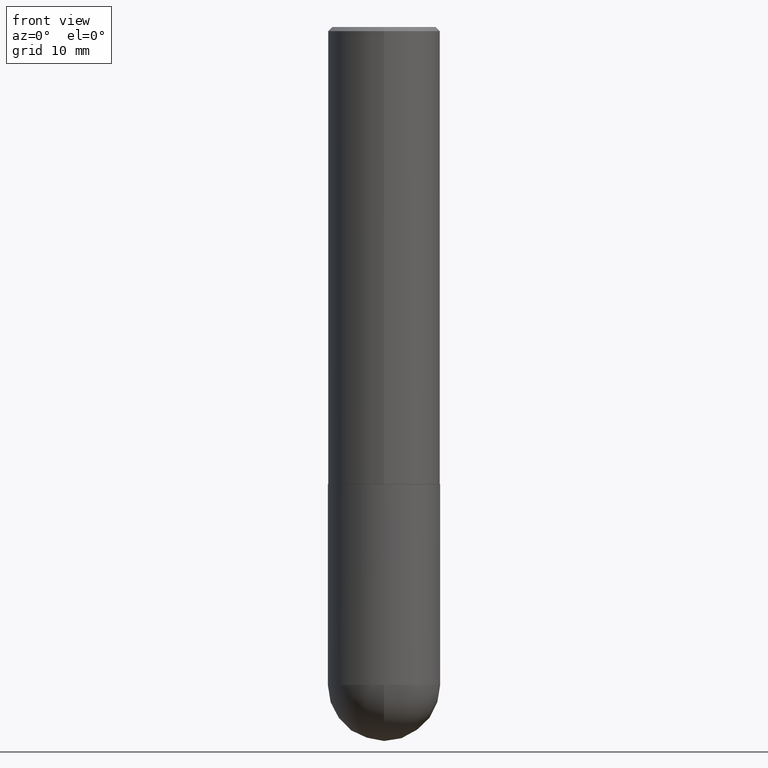
[diagram: clean part render]
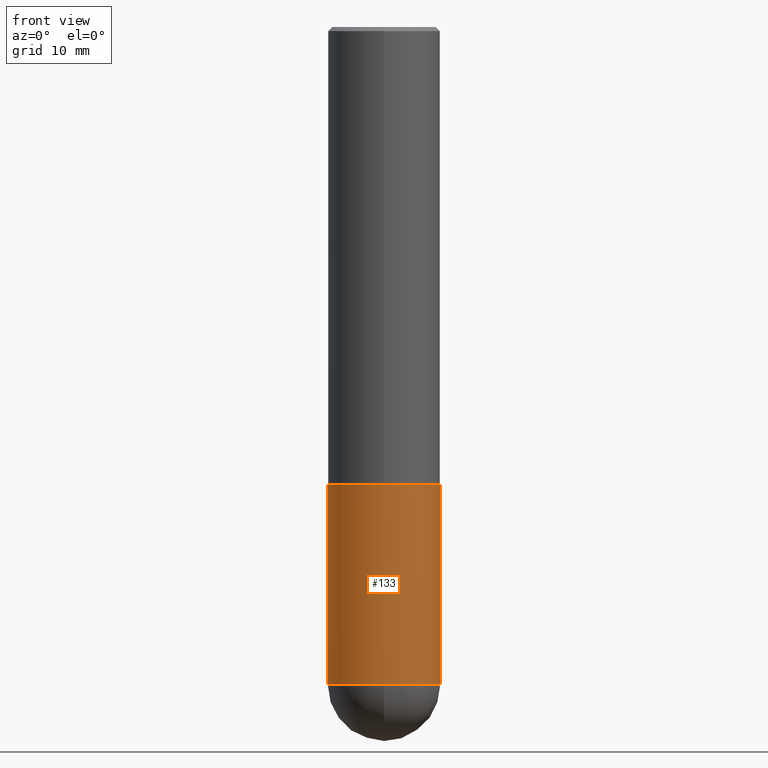
[diagram: same view with one face highlighted and labeled with its STEP entity id]
A machine part, front view. The second image highlights one B-rep face of the part: STEP entity #133.
In plain terms, the highlighted cylindrical surface (partial cylindrical patch) has radius 7.0002 mm, axis along (-0, 0, 1).
Its self-contained STEP definition (entity closure, byte-faithful):
#12 = EDGE_CURVE ( 'NONE', #374, #252, #184, .T. ) ;
#15 = EDGE_LOOP ( 'NONE', ( #256, #92, #86, #65, #49 ) ) ;
#16 = DIRECTION ( 'NONE',  ( -2.445468806185136877E-29, 3.491481338843145188E-15, 1.000000000000000000 ) ) ;
#49 = ORIENTED_EDGE ( 'NONE', *, *, #351, .F. ) ;
#51 = CARTESIAN_POINT ( 'NONE',  ( 0.2756000000000000671, -1.147789575331294974E-14, -3.228299999999999503 ) ) ;
#65 = ORIENTED_EDGE ( 'NONE', *, *, #395, .T. ) ;
#71 = AXIS2_PLACEMENT_3D ( 'NONE', #178, #275, #335 ) ;
#74 = CARTESIAN_POINT ( 'NONE',  ( -0.2756000000000000671, 1.958255779754836589E-15, -1.355658510874252287E-29 ) ) ;
#81 = CARTESIAN_POINT ( 'NONE',  ( -0.2756000000000000671, -7.595135459587778194E-15, -3.228299999999999503 ) ) ;
#83 = VERTEX_POINT ( 'NONE', #233 ) ;
#86 = ORIENTED_EDGE ( 'NONE', *, *, #299, .T. ) ;
#90 = VECTOR ( 'NONE', #127, 39.37007874015748143 ) ;
#92 = ORIENTED_EDGE ( 'NONE', *, *, #12, .T. ) ;
#94 = FACE_OUTER_BOUND ( 'NONE', #15, .T. ) ;
#127 = DIRECTION ( 'NONE',  ( -2.445468806185136877E-29, 3.491481338843145188E-15, 1.000000000000000000 ) ) ;
#129 = DIRECTION ( 'NONE',  ( 1.000000000000000000, -6.982962677686267499E-15, 4.876176775795935793E-29 ) ) ;
#133 = ADVANCED_FACE ( 'NONE', ( #94 ), #135, .T. ) ;
#135 = CYLINDRICAL_SURFACE ( 'NONE', #276, 0.2756000000000000671 ) ;
#144 = AXIS2_PLACEMENT_3D ( 'NONE', #289, #192, #412 ) ;
#151 = AXIS2_PLACEMENT_3D ( 'NONE', #316, #239, #231 ) ;
#158 = CIRCLE ( 'NONE', #151, 0.2756000000000000671 ) ;
#178 = CARTESIAN_POINT ( 'NONE',  ( 5.487876547960063631E-29, -7.835233272497900762E-15, -2.244099999999999540 ) ) ;
#184 = CIRCLE ( 'NONE', #144, 0.2756000000000000671 ) ;
#192 = DIRECTION ( 'NONE',  ( -2.445468806185136597E-29, 3.491481338843145583E-15, 1.000000000000000000 ) ) ;
#231 = DIRECTION ( 'NONE',  ( 1.000000000000000000, -6.982962677686264344E-15, 0.000000000000000000 ) ) ;
#233 = CARTESIAN_POINT ( 'NONE',  ( 0.2756000000000000116, -9.759737786468235716E-15, -2.244099999999999540 ) ) ;
#238 = CIRCLE ( 'NONE', #71, 0.2756000000000000116 ) ;
#239 = DIRECTION ( 'NONE',  ( -2.445468806185136597E-29, 3.491481338843145583E-15, 1.000000000000000000 ) ) ;
#247 = LINE ( 'NONE', #74, #363 ) ;
#252 = VERTEX_POINT ( 'NONE', #354 ) ;
#256 = ORIENTED_EDGE ( 'NONE', *, *, #385, .F. ) ;
#273 = CARTESIAN_POINT ( 'NONE',  ( -0.2756000000000000116, -7.595135459587776616E-15, -2.244099999999999540 ) ) ;
#275 = DIRECTION ( 'NONE',  ( -2.445468806185136597E-29, 3.491481338843145583E-15, 1.000000000000000000 ) ) ;
#276 = AXIS2_PLACEMENT_3D ( 'NONE', #324, #378, #129 ) ;
#289 = CARTESIAN_POINT ( 'NONE',  ( 7.894706947007475996E-29, -1.127154920618732565E-14, -3.228299999999999503 ) ) ;
#299 = EDGE_CURVE ( 'NONE', #252, #346, #158, .T. ) ;
#315 = CARTESIAN_POINT ( 'NONE',  ( 0.2756000000000000671, -1.924504513970335743E-15, 1.343874319409360268E-29 ) ) ;
#316 = CARTESIAN_POINT ( 'NONE',  ( 7.894706947007475996E-29, -1.127154920618732565E-14, -3.228299999999999503 ) ) ;
#324 = CARTESIAN_POINT ( 'NONE',  ( 0.000000000000000000, 0.000000000000000000, 0.000000000000000000 ) ) ;
#335 = DIRECTION ( 'NONE',  ( 1.000000000000000000, -6.982962677686265922E-15, 0.000000000000000000 ) ) ;
#346 = VERTEX_POINT ( 'NONE', #51 ) ;
#351 = EDGE_CURVE ( 'NONE', #384, #83, #238, .T. ) ;
#354 = CARTESIAN_POINT ( 'NONE',  ( -1.958255779754759675E-15, -0.2756000000000117245, -3.228299999999998615 ) ) ;
#363 = VECTOR ( 'NONE', #16, 39.37007874015748143 ) ;
#374 = VERTEX_POINT ( 'NONE', #81 ) ;
#378 = DIRECTION ( 'NONE',  ( -2.445468806185136597E-29, 3.491481338843145583E-15, 1.000000000000000000 ) ) ;
#384 = VERTEX_POINT ( 'NONE', #273 ) ;
#385 = EDGE_CURVE ( 'NONE', #374, #384, #247, .T. ) ;
#395 = EDGE_CURVE ( 'NONE', #346, #83, #397, .T. ) ;
#397 = LINE ( 'NONE', #315, #90 ) ;
#412 = DIRECTION ( 'NONE',  ( 1.000000000000000000, -6.982962677686264344E-15, 0.000000000000000000 ) ) ;